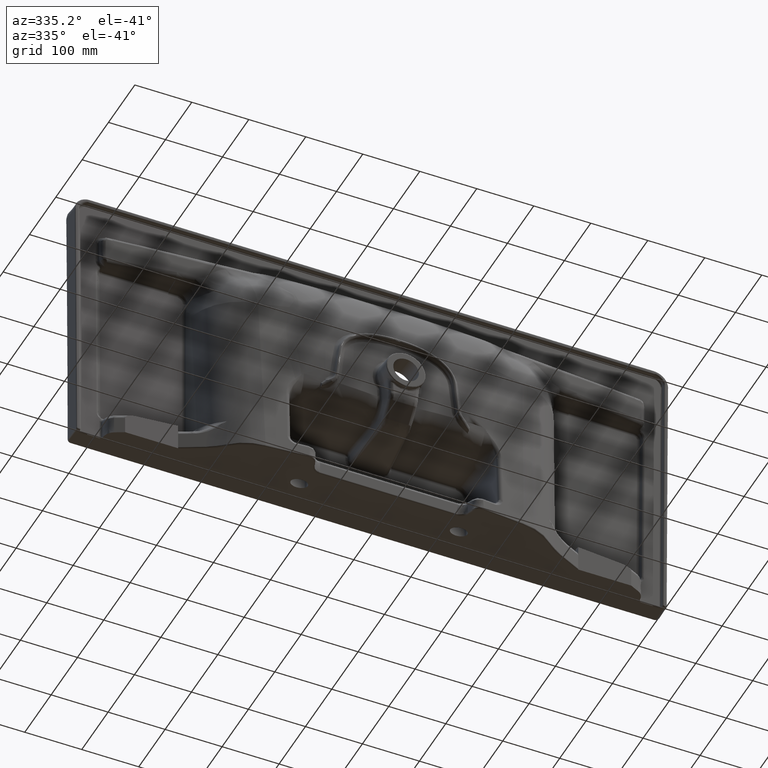
[diagram: clean part render]
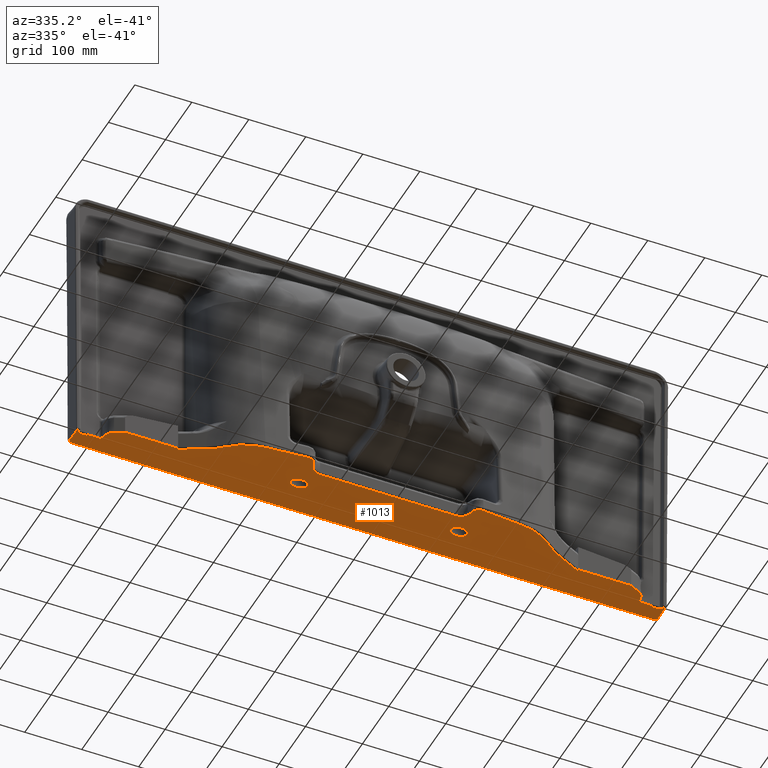
[diagram: same view with one face highlighted and labeled with its STEP entity id]
A machine part, auxiliary view. The second image highlights one B-rep face of the part: STEP entity #1013.
In plain terms, the highlighted planar face has unit normal (0, 0, -1).
Its self-contained STEP definition (entity closure, byte-faithful):
#603=PLANE('',#8682);
#640=ELLIPSE('',#8678,97.6579249239257,97.5);
#641=ELLIPSE('',#8679,97.6579249239257,97.5);
#642=ELLIPSE('',#8680,15.,10.);
#643=ELLIPSE('',#8681,15.,10.);
#693=FACE_BOUND('',#2185,.T.);
#694=FACE_BOUND('',#2186,.T.);
#695=FACE_BOUND('',#2187,.T.);
#1013=ADVANCED_FACE('',(#693,#694,#695),#603,.T.);
#2185=EDGE_LOOP('',(#3732,#3733,#3734,#3735,#3736,#3737,#3738,#3739,#3740,
#3741,#3742,#3743,#3744,#3745,#3746,#3747,#3748,#3749,#3750,#3751,#3752,
#3753,#3754,#3755,#3756,#3757,#3758,#3759,#3760,#3761,#3762,#3763,#3764,
#3765,#3766,#3767,#3768,#3769,#3770,#3771,#3772,#3773,#3774,#3775,#3776,
#3777,#3778));
#2186=EDGE_LOOP('',(#3779));
#2187=EDGE_LOOP('',(#3780));
#2766=B_SPLINE_CURVE_WITH_KNOTS('',3,(#10427,#10428,#10429,#10430),
 .UNSPECIFIED.,.F.,.F.,(4,4),(0.,1.),.UNSPECIFIED.);
#2767=B_SPLINE_CURVE_WITH_KNOTS('',3,(#10437,#10438,#10439,#10440),
 .UNSPECIFIED.,.F.,.F.,(4,4),(0.,1.),.UNSPECIFIED.);
#2768=B_SPLINE_CURVE_WITH_KNOTS('',3,(#10442,#10443,#10444,#10445,#10446,
#10447),.UNSPECIFIED.,.F.,.F.,(4,2,4),(0.,0.5,1.),.UNSPECIFIED.);
#2769=B_SPLINE_CURVE_WITH_KNOTS('',3,(#10449,#10450,#10451,#10452),
 .UNSPECIFIED.,.F.,.F.,(4,4),(0.,1.),.UNSPECIFIED.);
#2770=B_SPLINE_CURVE_WITH_KNOTS('',3,(#10454,#10455,#10456,#10457,#10458,
#10459,#10460,#10461,#10462,#10463,#10464,#10465,#10466),.UNSPECIFIED.,
 .F.,.F.,(4,3,3,3,4),(0.,0.254102590804526,0.508205181617672,0.762307772293524,
1.),.UNSPECIFIED.);
#2771=B_SPLINE_CURVE_WITH_KNOTS('',3,(#10468,#10469,#10470,#10471),
 .UNSPECIFIED.,.F.,.F.,(4,4),(0.,1.),.UNSPECIFIED.);
#2772=B_SPLINE_CURVE_WITH_KNOTS('',3,(#10475,#10476,#10477,#10478,#10479,
#10480,#10481),.UNSPECIFIED.,.F.,.F.,(4,3,4),(0.,0.369996112223852,1.),
 .UNSPECIFIED.);
#2773=B_SPLINE_CURVE_WITH_KNOTS('',3,(#10483,#10484,#10485,#10486,#10487,
#10488),.UNSPECIFIED.,.F.,.F.,(4,2,4),(0.,0.5,1.),.UNSPECIFIED.);
#2774=B_SPLINE_CURVE_WITH_KNOTS('',3,(#10490,#10491,#10492,#10493,#10494,
#10495,#10496,#10497,#10498,#10499,#10500,#10501,#10502,#10503,#10504,#10505),
 .UNSPECIFIED.,.F.,.F.,(4,3,3,3,3,4),(0.,0.214936908103801,0.429873731464657,
0.644811897918833,0.859752903923663,1.),.UNSPECIFIED.);
#2775=B_SPLINE_CURVE_WITH_KNOTS('',3,(#10507,#10508,#10509,#10510),
 .UNSPECIFIED.,.F.,.F.,(4,4),(0.,1.),.UNSPECIFIED.);
#2776=B_SPLINE_CURVE_WITH_KNOTS('',3,(#10512,#10513,#10514,#10515,#10516,
#10517,#10518,#10519,#10520,#10521),.UNSPECIFIED.,.F.,.F.,(4,3,3,4),(0.,
0.179128549203091,0.895642746015453,1.),.UNSPECIFIED.);
#2777=B_SPLINE_CURVE_WITH_KNOTS('',3,(#10523,#10524,#10525,#10526,#10527,
#10528,#10529,#10530,#10531,#10532,#10533,#10534,#10535,#10536,#10537,#10538),
 .UNSPECIFIED.,.F.,.F.,(4,3,3,3,3,4),(0.,0.15253395676081,0.364397745552172,
0.576264326293912,0.788132203927421,1.),.UNSPECIFIED.);
#2778=B_SPLINE_CURVE_WITH_KNOTS('',3,(#10540,#10541,#10542,#10543,#10544,
#10545,#10546,#10547,#10548,#10549),.UNSPECIFIED.,.F.,.F.,(4,3,3,4),(0.,
0.150521020451771,0.752605102258853,1.),.UNSPECIFIED.);
#2779=B_SPLINE_CURVE_WITH_KNOTS('',3,(#10550,#10551,#10552,#10553,#10554,
#10555,#10556,#10557,#10558,#10559),.UNSPECIFIED.,.F.,.F.,(4,3,3,4),(0.,
0.150521020451771,0.752605102258853,1.),.UNSPECIFIED.);
#2780=B_SPLINE_CURVE_WITH_KNOTS('',3,(#10561,#10562,#10563,#10564,#10565,
#10566,#10567,#10568,#10569,#10570,#10571,#10572,#10573,#10574,#10575,#10576),
 .UNSPECIFIED.,.F.,.F.,(4,3,3,3,3,4),(0.,0.152533956760808,0.364397745552167,
0.576264326293905,0.788132203927417,1.),.UNSPECIFIED.);
#2781=B_SPLINE_CURVE_WITH_KNOTS('',3,(#10578,#10579,#10580,#10581,#10582,
#10583,#10584,#10585,#10586,#10587),.UNSPECIFIED.,.F.,.F.,(4,3,3,4),(0.,
0.179128549203091,0.895642746015453,1.),.UNSPECIFIED.);
#2782=B_SPLINE_CURVE_WITH_KNOTS('',3,(#10589,#10590,#10591,#10592),
 .UNSPECIFIED.,.F.,.F.,(4,4),(0.,1.),.UNSPECIFIED.);
#2783=B_SPLINE_CURVE_WITH_KNOTS('',3,(#10594,#10595,#10596,#10597,#10598,
#10599,#10600,#10601,#10602,#10603,#10604,#10605,#10606,#10607,#10608,#10609),
 .UNSPECIFIED.,.F.,.F.,(4,3,3,3,3,4),(0.,0.214936908103801,0.42987373146464,
0.64481189791881,0.859752903923634,1.),.UNSPECIFIED.);
#2784=B_SPLINE_CURVE_WITH_KNOTS('',3,(#10611,#10612,#10613,#10614,#10615,
#10616),.UNSPECIFIED.,.F.,.F.,(4,2,4),(0.,0.5,1.),.UNSPECIFIED.);
#2785=B_SPLINE_CURVE_WITH_KNOTS('',3,(#10618,#10619,#10620,#10621,#10622,
#10623,#10624),.UNSPECIFIED.,.F.,.F.,(4,3,4),(0.,0.369996112223852,1.),
 .UNSPECIFIED.);
#2786=B_SPLINE_CURVE_WITH_KNOTS('',3,(#10628,#10629,#10630,#10631),
 .UNSPECIFIED.,.F.,.F.,(4,4),(0.,1.),.UNSPECIFIED.);
#2787=B_SPLINE_CURVE_WITH_KNOTS('',3,(#10633,#10634,#10635,#10636,#10637,
#10638,#10639,#10640,#10641,#10642,#10643,#10644,#10645),.UNSPECIFIED.,
 .F.,.F.,(4,3,3,3,4),(0.,0.254102590804522,0.508205181617664,0.762307772293516,
1.),.UNSPECIFIED.);
#2788=B_SPLINE_CURVE_WITH_KNOTS('',3,(#10647,#10648,#10649,#10650),
 .UNSPECIFIED.,.F.,.F.,(4,4),(0.,1.),.UNSPECIFIED.);
#2789=B_SPLINE_CURVE_WITH_KNOTS('',3,(#10652,#10653,#10654,#10655,#10656,
#10657),.UNSPECIFIED.,.F.,.F.,(4,2,4),(0.,0.5,1.),.UNSPECIFIED.);
#2790=B_SPLINE_CURVE_WITH_KNOTS('',3,(#10659,#10660,#10661,#10662),
 .UNSPECIFIED.,.F.,.F.,(4,4),(0.,1.),.UNSPECIFIED.);
#2791=B_SPLINE_CURVE_WITH_KNOTS('',3,(#10668,#10669,#10670,#10671),
 .UNSPECIFIED.,.F.,.F.,(4,4),(0.,1.),.UNSPECIFIED.);
#2792=B_SPLINE_CURVE_WITH_KNOTS('',3,(#10673,#10674,#10675,#10676),
 .UNSPECIFIED.,.F.,.F.,(4,4),(0.,1.),.UNSPECIFIED.);
#2793=B_SPLINE_CURVE_WITH_KNOTS('',3,(#10682,#10683,#10684,#10685,#10686,
#10687),.UNSPECIFIED.,.F.,.F.,(4,2,4),(0.,0.5,1.),.UNSPECIFIED.);
#2794=B_SPLINE_CURVE_WITH_KNOTS('',3,(#10689,#10690,#10691,#10692,#10693,
#10694,#10695),.UNSPECIFIED.,.F.,.F.,(4,3,4),(0.,0.525358105713811,1.),
 .UNSPECIFIED.);
#2795=B_SPLINE_CURVE_WITH_KNOTS('',3,(#10697,#10698,#10699,#10700,#10701,
#10702),.UNSPECIFIED.,.F.,.F.,(4,2,4),(0.,0.5,1.),.UNSPECIFIED.);
#2796=B_SPLINE_CURVE_WITH_KNOTS('',3,(#10704,#10705,#10706,#10707,#10708,
#10709,#10710,#10711,#10712,#10713,#10714,#10715,#10716),.UNSPECIFIED.,
 .F.,.F.,(4,3,3,3,4),(0.,0.0416067440002956,0.208033720001478,0.873741624006209,
1.),.UNSPECIFIED.);
#2797=B_SPLINE_CURVE_WITH_KNOTS('',3,(#10718,#10719,#10720,#10721,#10722,
#10723,#10724,#10725,#10726,#10727,#10728,#10729,#10730),.UNSPECIFIED.,
 .F.,.F.,(4,3,3,3,4),(0.,0.0416067440002948,0.208033720001478,0.873741624006208,
1.),.UNSPECIFIED.);
#2798=B_SPLINE_CURVE_WITH_KNOTS('',3,(#10732,#10733,#10734,#10735,#10736,
#10737),.UNSPECIFIED.,.F.,.F.,(4,2,4),(0.,0.5,1.),.UNSPECIFIED.);
#2799=B_SPLINE_CURVE_WITH_KNOTS('',3,(#10739,#10740,#10741,#10742,#10743,
#10744,#10745),.UNSPECIFIED.,.F.,.F.,(4,3,4),(0.,0.525358105713811,1.),
 .UNSPECIFIED.);
#2800=B_SPLINE_CURVE_WITH_KNOTS('',3,(#10747,#10748,#10749,#10750,#10751,
#10752),.UNSPECIFIED.,.F.,.F.,(4,2,4),(0.,0.5,1.),.UNSPECIFIED.);
#2801=B_SPLINE_CURVE_WITH_KNOTS('',3,(#10758,#10759,#10760,#10761),
 .UNSPECIFIED.,.F.,.F.,(4,4),(0.,1.),.UNSPECIFIED.);
#3732=ORIENTED_EDGE('',*,*,#7178,.T.);
#3733=ORIENTED_EDGE('',*,*,#7179,.F.);
#3734=ORIENTED_EDGE('',*,*,#7180,.F.);
#3735=ORIENTED_EDGE('',*,*,#7181,.F.);
#3736=ORIENTED_EDGE('',*,*,#7182,.T.);
#3737=ORIENTED_EDGE('',*,*,#7183,.T.);
#3738=ORIENTED_EDGE('',*,*,#7184,.T.);
#3739=ORIENTED_EDGE('',*,*,#7185,.F.);
#3740=ORIENTED_EDGE('',*,*,#7186,.T.);
#3741=ORIENTED_EDGE('',*,*,#7187,.T.);
#3742=ORIENTED_EDGE('',*,*,#7188,.T.);
#3743=ORIENTED_EDGE('',*,*,#7189,.T.);
#3744=ORIENTED_EDGE('',*,*,#7190,.T.);
#3745=ORIENTED_EDGE('',*,*,#7191,.T.);
#3746=ORIENTED_EDGE('',*,*,#7192,.T.);
#3747=ORIENTED_EDGE('',*,*,#7193,.T.);
#3748=ORIENTED_EDGE('',*,*,#7163,.T.);
#3749=ORIENTED_EDGE('',*,*,#7194,.F.);
#3750=ORIENTED_EDGE('',*,*,#7195,.F.);
#3751=ORIENTED_EDGE('',*,*,#7196,.F.);
#3752=ORIENTED_EDGE('',*,*,#7197,.F.);
#3753=ORIENTED_EDGE('',*,*,#7198,.F.);
#3754=ORIENTED_EDGE('',*,*,#7199,.F.);
#3755=ORIENTED_EDGE('',*,*,#7200,.F.);
#3756=ORIENTED_EDGE('',*,*,#7201,.F.);
#3757=ORIENTED_EDGE('',*,*,#7202,.T.);
#3758=ORIENTED_EDGE('',*,*,#7203,.F.);
#3759=ORIENTED_EDGE('',*,*,#7204,.F.);
#3760=ORIENTED_EDGE('',*,*,#7205,.F.);
#3761=ORIENTED_EDGE('',*,*,#7206,.T.);
#3762=ORIENTED_EDGE('',*,*,#7207,.T.);
#3763=ORIENTED_EDGE('',*,*,#7208,.T.);
#3764=ORIENTED_EDGE('',*,*,#7209,.F.);
#3765=ORIENTED_EDGE('',*,*,#7210,.F.);
#3766=ORIENTED_EDGE('',*,*,#7211,.F.);
#3767=ORIENTED_EDGE('',*,*,#7212,.F.);
#3768=ORIENTED_EDGE('',*,*,#7213,.F.);
#3769=ORIENTED_EDGE('',*,*,#7214,.F.);
#3770=ORIENTED_EDGE('',*,*,#7215,.F.);
#3771=ORIENTED_EDGE('',*,*,#7216,.F.);
#3772=ORIENTED_EDGE('',*,*,#7217,.T.);
#3773=ORIENTED_EDGE('',*,*,#7218,.T.);
#3774=ORIENTED_EDGE('',*,*,#7219,.T.);
#3775=ORIENTED_EDGE('',*,*,#7220,.T.);
#3776=ORIENTED_EDGE('',*,*,#7221,.T.);
#3777=ORIENTED_EDGE('',*,*,#7222,.T.);
#3778=ORIENTED_EDGE('',*,*,#7223,.T.);
#3779=ORIENTED_EDGE('',*,*,#7224,.T.);
#3780=ORIENTED_EDGE('',*,*,#7225,.F.);
#6383=VERTEX_POINT('',#9970);
#6384=VERTEX_POINT('',#9972);
#6398=VERTEX_POINT('',#10431);
#6399=VERTEX_POINT('',#10432);
#6400=VERTEX_POINT('',#10434);
#6401=VERTEX_POINT('',#10436);
#6402=VERTEX_POINT('',#10441);
#6403=VERTEX_POINT('',#10448);
#6404=VERTEX_POINT('',#10453);
#6405=VERTEX_POINT('',#10467);
#6406=VERTEX_POINT('',#10472);
#6407=VERTEX_POINT('',#10474);
#6408=VERTEX_POINT('',#10482);
#6409=VERTEX_POINT('',#10489);
#6410=VERTEX_POINT('',#10506);
#6411=VERTEX_POINT('',#10511);
#6412=VERTEX_POINT('',#10522);
#6413=VERTEX_POINT('',#10539);
#6414=VERTEX_POINT('',#10560);
#6415=VERTEX_POINT('',#10577);
#6416=VERTEX_POINT('',#10588);
#6417=VERTEX_POINT('',#10593);
#6418=VERTEX_POINT('',#10610);
#6419=VERTEX_POINT('',#10617);
#6420=VERTEX_POINT('',#10625);
#6421=VERTEX_POINT('',#10627);
#6422=VERTEX_POINT('',#10632);
#6423=VERTEX_POINT('',#10646);
#6424=VERTEX_POINT('',#10651);
#6425=VERTEX_POINT('',#10658);
#6426=VERTEX_POINT('',#10663);
#6427=VERTEX_POINT('',#10665);
#6428=VERTEX_POINT('',#10667);
#6429=VERTEX_POINT('',#10672);
#6430=VERTEX_POINT('',#10677);
#6431=VERTEX_POINT('',#10679);
#6432=VERTEX_POINT('',#10681);
#6433=VERTEX_POINT('',#10688);
#6434=VERTEX_POINT('',#10696);
#6435=VERTEX_POINT('',#10703);
#6436=VERTEX_POINT('',#10717);
#6437=VERTEX_POINT('',#10731);
#6438=VERTEX_POINT('',#10738);
#6439=VERTEX_POINT('',#10746);
#6440=VERTEX_POINT('',#10753);
#6441=VERTEX_POINT('',#10755);
#6442=VERTEX_POINT('',#10757);
#6443=VERTEX_POINT('',#10763);
#6444=VERTEX_POINT('',#10765);
#7163=EDGE_CURVE('',#6384,#6383,#8498,.T.);
#7178=EDGE_CURVE('',#6398,#6399,#2766,.T.);
#7179=EDGE_CURVE('',#6400,#6399,#8500,.T.);
#7180=EDGE_CURVE('',#6401,#6400,#8501,.T.);
#7181=EDGE_CURVE('',#6402,#6401,#2767,.T.);
#7182=EDGE_CURVE('',#6402,#6403,#2768,.T.);
#7183=EDGE_CURVE('',#6403,#6404,#2769,.T.);
#7184=EDGE_CURVE('',#6404,#6405,#2770,.T.);
#7185=EDGE_CURVE('',#6406,#6405,#2771,.T.);
#7186=EDGE_CURVE('',#6406,#6407,#8502,.T.);
#7187=EDGE_CURVE('',#6407,#6408,#2772,.T.);
#7188=EDGE_CURVE('',#6408,#6409,#2773,.T.);
#7189=EDGE_CURVE('',#6409,#6410,#2774,.T.);
#7190=EDGE_CURVE('',#6410,#6411,#2775,.T.);
#7191=EDGE_CURVE('',#6411,#6412,#2776,.T.);
#7192=EDGE_CURVE('',#6412,#6413,#2777,.T.);
#7193=EDGE_CURVE('',#6413,#6384,#2778,.T.);
#7194=EDGE_CURVE('',#6414,#6383,#2779,.T.);
#7195=EDGE_CURVE('',#6415,#6414,#2780,.T.);
#7196=EDGE_CURVE('',#6416,#6415,#2781,.T.);
#7197=EDGE_CURVE('',#6417,#6416,#2782,.T.);
#7198=EDGE_CURVE('',#6418,#6417,#2783,.T.);
#7199=EDGE_CURVE('',#6419,#6418,#2784,.T.);
#7200=EDGE_CURVE('',#6420,#6419,#2785,.T.);
#7201=EDGE_CURVE('',#6421,#6420,#8503,.T.);
#7202=EDGE_CURVE('',#6421,#6422,#2786,.T.);
#7203=EDGE_CURVE('',#6423,#6422,#2787,.T.);
#7204=EDGE_CURVE('',#6424,#6423,#2788,.T.);
#7205=EDGE_CURVE('',#6425,#6424,#2789,.T.);
#7206=EDGE_CURVE('',#6425,#6426,#2790,.T.);
#7207=EDGE_CURVE('',#6426,#6427,#8504,.T.);
#7208=EDGE_CURVE('',#6427,#6428,#8505,.T.);
#7209=EDGE_CURVE('',#6429,#6428,#2791,.T.);
#7210=EDGE_CURVE('',#6430,#6429,#2792,.T.);
#7211=EDGE_CURVE('',#6431,#6430,#640,.T.);
#7212=EDGE_CURVE('',#6432,#6431,#8506,.T.);
#7213=EDGE_CURVE('',#6433,#6432,#2793,.T.);
#7214=EDGE_CURVE('',#6434,#6433,#2794,.T.);
#7215=EDGE_CURVE('',#6435,#6434,#2795,.T.);
#7216=EDGE_CURVE('',#6436,#6435,#2796,.T.);
#7217=EDGE_CURVE('',#6436,#6437,#2797,.T.);
#7218=EDGE_CURVE('',#6437,#6438,#2798,.T.);
#7219=EDGE_CURVE('',#6438,#6439,#2799,.T.);
#7220=EDGE_CURVE('',#6439,#6440,#2800,.T.);
#7221=EDGE_CURVE('',#6440,#6441,#8507,.T.);
#7222=EDGE_CURVE('',#6441,#6442,#641,.T.);
#7223=EDGE_CURVE('',#6442,#6398,#2801,.T.);
#7224=EDGE_CURVE('',#6443,#6443,#642,.T.);
#7225=EDGE_CURVE('',#6444,#6444,#643,.T.);
#8498=LINE('',#9971,#8574);
#8500=LINE('',#10433,#8576);
#8501=LINE('',#10435,#8577);
#8502=LINE('',#10473,#8578);
#8503=LINE('',#10626,#8579);
#8504=LINE('',#10664,#8580);
#8505=LINE('',#10666,#8581);
#8506=LINE('',#10680,#8582);
#8507=LINE('',#10754,#8583);
#8574=VECTOR('',#9068,1.);
#8576=VECTOR('',#9108,1.);
#8577=VECTOR('',#9109,1.);
#8578=VECTOR('',#9110,1.);
#8579=VECTOR('',#9111,1.);
#8580=VECTOR('',#9112,1.);
#8581=VECTOR('',#9113,1.);
#8582=VECTOR('',#9116,1.);
#8583=VECTOR('',#9117,1.);
#8678=AXIS2_PLACEMENT_3D('',#10678,#9114,#9115);
#8679=AXIS2_PLACEMENT_3D('',#10756,#9118,#9119);
#8680=AXIS2_PLACEMENT_3D('',#10762,#9120,#9121);
#8681=AXIS2_PLACEMENT_3D('',#10764,#9122,#9123);
#8682=AXIS2_PLACEMENT_3D('',#10766,#9124,#9125);
#9068=DIRECTION('',(1.,0.,0.));
#9108=DIRECTION('',(0.,1.,0.));
#9109=DIRECTION('',(1.,0.,0.));
#9110=DIRECTION('',(0.,1.,0.));
#9111=DIRECTION('',(0.,1.,0.));
#9112=DIRECTION('',(-1.,0.,0.));
#9113=DIRECTION('',(0.,1.,0.));
#9114=DIRECTION('',(0.,0.,1.));
#9115=DIRECTION('',(0.309016994374947,0.951056516295154,0.));
#9116=DIRECTION('',(0.996173806224038,0.0873942091509145,0.));
#9117=DIRECTION('',(-0.996173806224038,0.0873942091509145,0.));
#9118=DIRECTION('',(0.,0.,-1.));
#9119=DIRECTION('',(-0.309016994374947,0.951056516295154,0.));
#9120=DIRECTION('',(0.,0.,1.));
#9121=DIRECTION('',(1.,0.,0.));
#9122=DIRECTION('',(0.,0.,-1.));
#9123=DIRECTION('',(-1.,0.,0.));
#9124=DIRECTION('',(0.,0.,-1.));
#9125=DIRECTION('',(-1.,0.,0.));
#9970=CARTESIAN_POINT('',(474.584749255457,-19.6258675358207,-238.365596089054));
#9971=CARTESIAN_POINT('',(-4.00000000000006,-19.6258675358207,-238.365596089054));
#9972=CARTESIAN_POINT('',(-482.584749255457,-19.6258675358207,-238.365596089054));
#10427=CARTESIAN_POINT('',(-314.36730217819,-96.1587670242462,-238.365596089054));
#10428=CARTESIAN_POINT('',(-327.911669283537,-89.4959009917304,-238.365596089054));
#10429=CARTESIAN_POINT('',(-341.455949242889,-82.8328577899802,-238.365596089054));
#10430=CARTESIAN_POINT('',(-355.,-76.1693487188919,-238.365596089054));
#10431=CARTESIAN_POINT('',(-314.36730217819,-96.1587670242462,-238.365596089054));
#10432=CARTESIAN_POINT('',(-355.,-76.1693487188919,-238.365596089054));
#10433=CARTESIAN_POINT('',(-355.,0.,-238.365596089054));
#10434=CARTESIAN_POINT('',(-355.,-78.9563557947205,-238.365596089054));
#10435=CARTESIAN_POINT('',(-499.,-78.9563557947205,-238.365596089054));
#10436=CARTESIAN_POINT('',(-448.000000171255,-78.9563557947205,-238.365596089054));
#10437=CARTESIAN_POINT('',(-463.717087411793,-71.2235401172891,-238.365596089054));
#10438=CARTESIAN_POINT('',(-458.478097435319,-73.8012248205637,-238.365596089054));
#10439=CARTESIAN_POINT('',(-453.239065412191,-76.3788240676013,-238.365596089054));
#10440=CARTESIAN_POINT('',(-448.000000171255,-78.9563557947205,-238.365596089054));
#10441=CARTESIAN_POINT('',(-463.717087411793,-71.2235401172891,-238.365596089054));
#10442=CARTESIAN_POINT('',(-463.717087411793,-71.2235401172891,-238.365596089054));
#10443=CARTESIAN_POINT('',(-466.549609005418,-69.8298845431481,-238.365596089054));
#10444=CARTESIAN_POINT('',(-469.00657899035,-67.7815720973043,-238.365596089054));
#10445=CARTESIAN_POINT('',(-472.747825182096,-62.8022088052743,-238.365596089054));
#10446=CARTESIAN_POINT('',(-474.03555286044,-59.8598908110384,-238.365596089054));
#10447=CARTESIAN_POINT('',(-474.583727302669,-56.751039062858,-238.365596089054));
#10448=CARTESIAN_POINT('',(-474.583727302669,-56.7510390628579,-238.365596089054));
#10449=CARTESIAN_POINT('',(-474.583727302669,-56.7510390628579,-238.365596089054));
#10450=CARTESIAN_POINT('',(-474.866559153093,-55.1470199315447,-238.365596089054));
#10451=CARTESIAN_POINT('',(-475.149391003518,-53.5430008002313,-238.365596089054));
#10452=CARTESIAN_POINT('',(-475.432222853942,-51.938981668918,-238.365596089054));
#10453=CARTESIAN_POINT('',(-475.432222853942,-51.938981668918,-238.365596089054));
#10454=CARTESIAN_POINT('',(-475.432222853941,-51.9389816689179,-238.365596089054));
#10455=CARTESIAN_POINT('',(-475.509964303248,-51.4980880008349,-238.365596089054));
#10456=CARTESIAN_POINT('',(-475.664898793694,-51.0645363121512,-238.365596089054));
#10457=CARTESIAN_POINT('',(-475.884196132792,-50.6742292067066,-238.365596089054));
#10458=CARTESIAN_POINT('',(-476.103493471894,-50.2839221012547,-238.365596089054));
#10459=CARTESIAN_POINT('',(-476.393202151038,-49.9260944271645,-238.365596089054));
#10460=CARTESIAN_POINT('',(-476.729331268572,-49.630378049787,-238.365596089054));
#10461=CARTESIAN_POINT('',(-477.065460385923,-49.3346616725714,-238.365596089054));
#10462=CARTESIAN_POINT('',(-477.457280797703,-49.0929003691939,-238.365596089054));
#10463=CARTESIAN_POINT('',(-477.872345685225,-48.9251144984228,-238.365596089054));
#10464=CARTESIAN_POINT('',(-478.261290729117,-48.7678873157979,-238.365596089054));
#10465=CARTESIAN_POINT('',(-478.680309581395,-48.6714640521749,-238.365596089054));
#10466=CARTESIAN_POINT('',(-479.098856156862,-48.6428738739786,-238.365596089054));
#10467=CARTESIAN_POINT('',(-479.098220915429,-48.6335742423167,-238.365596089054));
#10468=CARTESIAN_POINT('',(-500.,-48.6335843830684,-238.365596089054));
#10469=CARTESIAN_POINT('',(-493.032740305143,-48.6335810031592,-238.365596089054));
#10470=CARTESIAN_POINT('',(-486.065480610286,-48.6335776229085,-238.365596089054));
#10471=CARTESIAN_POINT('',(-479.098220915429,-48.6335742423167,-238.365596089054));
#10472=CARTESIAN_POINT('',(-500.,-48.6335843830684,-238.365596089054));
#10473=CARTESIAN_POINT('',(-500.,-284.503441547336,-238.365596089054));
#10474=CARTESIAN_POINT('',(-500.,-46.1337049561332,-238.365596089054));
#10475=CARTESIAN_POINT('',(-500.,-46.1337049561332,-238.365596089054));
#10476=CARTESIAN_POINT('',(-501.370433370491,-46.1337056180254,-238.365596089054));
#10477=CARTESIAN_POINT('',(-502.740866740983,-46.1337062799043,-238.365596089054));
#10478=CARTESIAN_POINT('',(-504.111300111474,-46.1337069417698,-238.365596089054));
#10479=CARTESIAN_POINT('',(-506.44477963416,-46.1337080687487,-238.365596089054));
#10480=CARTESIAN_POINT('',(-508.778259156846,-46.1337091956887,-238.365596089054));
#10481=CARTESIAN_POINT('',(-511.111738679532,-46.1337103225899,-238.365596089054));
#10482=CARTESIAN_POINT('',(-511.111738679532,-46.1337103225899,-238.365596089054));
#10483=CARTESIAN_POINT('',(-511.111738679532,-46.1337103225899,-238.365596089054));
#10484=CARTESIAN_POINT('',(-512.564345134865,-46.1337110240933,-238.365596089054));
#10485=CARTESIAN_POINT('',(-513.988311394956,-46.7313528203336,-238.365596089054));
#10486=CARTESIAN_POINT('',(-516.016199887885,-48.7606515735757,-238.365596089054));
#10487=CARTESIAN_POINT('',(-516.611813020361,-50.1811060354095,-238.365596089054));
#10488=CARTESIAN_POINT('',(-516.611812665908,-51.6337130525274,-238.365596089054));
#10489=CARTESIAN_POINT('',(-516.611812665906,-51.6337209912485,-238.365596089054));
#10490=CARTESIAN_POINT('',(-516.611812665904,-51.6337289299696,-238.365596089054));
#10491=CARTESIAN_POINT('',(-516.611812652249,-51.6896902655289,-238.365596089054));
#10492=CARTESIAN_POINT('',(-516.621474488077,-51.7464233440962,-238.365596089054));
#10493=CARTESIAN_POINT('',(-516.639998026749,-51.799230063296,-238.365596089054));
#10494=CARTESIAN_POINT('',(-516.658521561346,-51.8520367708777,-238.365596089054));
#10495=CARTESIAN_POINT('',(-516.686417683155,-51.9023735863026,-238.365596089054));
#10496=CARTESIAN_POINT('',(-516.721376239417,-51.9460722023406,-238.365596089054));
#10497=CARTESIAN_POINT('',(-516.756335016714,-51.9897710946743,-238.365596089054));
#10498=CARTESIAN_POINT('',(-516.799320497948,-52.0280369593923,-238.365596089054));
#10499=CARTESIAN_POINT('',(-516.846773048646,-52.0577011589196,-238.365596089054));
#10500=CARTESIAN_POINT('',(-516.894226219363,-52.0873657460428,-238.365596089054));
#10501=CARTESIAN_POINT('',(-516.947455368155,-52.1092466214253,-238.365596089054));
#10502=CARTESIAN_POINT('',(-517.00205263928,-52.1215319429952,-238.365596089054));
#10503=CARTESIAN_POINT('',(-517.037968716664,-52.1296136758568,-238.365596089054));
#10504=CARTESIAN_POINT('',(-517.075005271376,-52.1337291599092,-238.365596089054));
#10505=CARTESIAN_POINT('',(-517.111819385799,-52.1337291781388,-238.365596089054));
#10506=CARTESIAN_POINT('',(-517.111819385799,-52.1337291781388,-238.365596089054));
#10507=CARTESIAN_POINT('',(-517.111819385799,-52.1337291781388,-238.365596089054));
#10508=CARTESIAN_POINT('',(-517.963890405733,-52.1337296000657,-238.365596089054));
#10509=CARTESIAN_POINT('',(-518.815961425666,-52.1337300219877,-238.365596089054));
#10510=CARTESIAN_POINT('',(-519.668032445599,-52.1337304439048,-238.365596089054));
#10511=CARTESIAN_POINT('',(-519.668032445599,-52.1337304439048,-238.365596089054));
#10512=CARTESIAN_POINT('',(-519.668032445599,-52.1337304439048,-238.365596089054));
#10513=CARTESIAN_POINT('',(-519.705862661811,-50.4674931701292,-238.365596089054));
#10514=CARTESIAN_POINT('',(-519.743692877904,-48.8012558963509,-238.365596089054));
#10515=CARTESIAN_POINT('',(-519.781523093875,-47.1350186225698,-238.365596089054));
#10516=CARTESIAN_POINT('',(-519.93284395776,-40.4700695274456,-238.365596089054));
#10517=CARTESIAN_POINT('',(-520.084164819697,-33.8051204322771,-238.365596089054));
#10518=CARTESIAN_POINT('',(-520.235485679505,-27.1401713370603,-238.365596089054));
#10519=CARTESIAN_POINT('',(-520.257524920975,-26.1694497678047,-238.365596089054));
#10520=CARTESIAN_POINT('',(-520.2795641624,-25.198728198548,-238.365596089054));
#10521=CARTESIAN_POINT('',(-520.301603403779,-24.2280066292904,-238.365596089054));
#10522=CARTESIAN_POINT('',(-520.301603403779,-24.2280066292904,-238.365596089054));
#10523=CARTESIAN_POINT('',(-520.301603403779,-24.2280066292904,-238.365596089054));
#10524=CARTESIAN_POINT('',(-520.309890551724,-23.8629980013032,-238.365596089054));
#10525=CARTESIAN_POINT('',(-520.273155464136,-23.4942929078226,-238.365596089054));
#10526=CARTESIAN_POINT('',(-520.193012619949,-23.1380947890014,-238.365596089054));
#10527=CARTESIAN_POINT('',(-520.082455486974,-22.6467191311047,-238.365596089054));
#10528=CARTESIAN_POINT('',(-519.885535448337,-22.1676551923432,-238.365596089054));
#10529=CARTESIAN_POINT('',(-519.618560662105,-21.7405751291919,-238.365596089054));
#10530=CARTESIAN_POINT('',(-519.351582395422,-21.3134894983575,-238.365596089054));
#10531=CARTESIAN_POINT('',(-519.00718379886,-20.9266091663542,-238.365596089054));
#10532=CARTESIAN_POINT('',(-518.61388625006,-20.6119719640817,-238.365596089054));
#10533=CARTESIAN_POINT('',(-518.220586263456,-20.2973328115716,-238.365596089054));
#10534=CARTESIAN_POINT('',(-517.767538828961,-20.0462592594072,-238.365596089054));
#10535=CARTESIAN_POINT('',(-517.292261945221,-19.879542255064,-238.365596089054));
#10536=CARTESIAN_POINT('',(-516.816985163318,-19.712825286443,-238.365596089054));
#10537=CARTESIAN_POINT('',(-516.306370145197,-19.6258664492377,-238.365596089054));
#10538=CARTESIAN_POINT('',(-515.802701040484,-19.6258664492377,-238.365596089054));
#10539=CARTESIAN_POINT('',(-515.802701040484,-19.6258664492377,-238.365596089054));
#10540=CARTESIAN_POINT('',(-515.802701040484,-19.6258664492377,-238.365596089054));
#10541=CARTESIAN_POINT('',(-514.136034373818,-19.6258664492377,-238.365596089054));
#10542=CARTESIAN_POINT('',(-512.469367707151,-19.6258664492377,-238.365596089054));
#10543=CARTESIAN_POINT('',(-510.802701040484,-19.6258664492378,-238.365596089054));
#10544=CARTESIAN_POINT('',(-504.136034373818,-19.6258664492378,-238.365596089054));
#10545=CARTESIAN_POINT('',(-497.469367707151,-19.6258664492379,-238.365596089054));
#10546=CARTESIAN_POINT('',(-490.802701040484,-19.6258664492379,-238.365596089054));
#10547=CARTESIAN_POINT('',(-488.063383778809,-19.625866449238,-238.365596089054));
#10548=CARTESIAN_POINT('',(-485.324066517133,-19.625866449238,-238.365596089054));
#10549=CARTESIAN_POINT('',(-482.584749255457,-19.625866449238,-238.365596089054));
#10550=CARTESIAN_POINT('',(507.802701040484,-19.6258664492377,-238.365596089054));
#10551=CARTESIAN_POINT('',(506.136034373818,-19.6258664492377,-238.365596089054));
#10552=CARTESIAN_POINT('',(504.469367707151,-19.6258664492377,-238.365596089054));
#10553=CARTESIAN_POINT('',(502.802701040484,-19.6258664492378,-238.365596089054));
#10554=CARTESIAN_POINT('',(496.136034373818,-19.6258664492378,-238.365596089054));
#10555=CARTESIAN_POINT('',(489.469367707151,-19.6258664492379,-238.365596089054));
#10556=CARTESIAN_POINT('',(482.802701040484,-19.6258664492379,-238.365596089054));
#10557=CARTESIAN_POINT('',(480.063383778809,-19.625866449238,-238.365596089054));
#10558=CARTESIAN_POINT('',(477.324066517133,-19.625866449238,-238.365596089054));
#10559=CARTESIAN_POINT('',(474.584749255457,-19.625866449238,-238.365596089054));
#10560=CARTESIAN_POINT('',(507.802701040484,-19.6258664492377,-238.365596089054));
#10561=CARTESIAN_POINT('',(512.301603403779,-24.2280066292904,-238.365596089054));
#10562=CARTESIAN_POINT('',(512.309890551724,-23.8629980013032,-238.365596089054));
#10563=CARTESIAN_POINT('',(512.273155464136,-23.4942929078226,-238.365596089054));
#10564=CARTESIAN_POINT('',(512.193012619949,-23.1380947890014,-238.365596089054));
#10565=CARTESIAN_POINT('',(512.082455486974,-22.6467191311047,-238.365596089054));
#10566=CARTESIAN_POINT('',(511.885535448337,-22.1676551923432,-238.365596089054));
#10567=CARTESIAN_POINT('',(511.618560662105,-21.7405751291919,-238.365596089054));
#10568=CARTESIAN_POINT('',(511.351582395422,-21.3134894983575,-238.365596089054));
#10569=CARTESIAN_POINT('',(511.00718379886,-20.9266091663542,-238.365596089054));
#10570=CARTESIAN_POINT('',(510.61388625006,-20.6119719640817,-238.365596089054));
#10571=CARTESIAN_POINT('',(510.220586263456,-20.2973328115716,-238.365596089054));
#10572=CARTESIAN_POINT('',(509.767538828961,-20.0462592594072,-238.365596089054));
#10573=CARTESIAN_POINT('',(509.292261945221,-19.879542255064,-238.365596089054));
#10574=CARTESIAN_POINT('',(508.816985163318,-19.712825286443,-238.365596089054));
#10575=CARTESIAN_POINT('',(508.306370145197,-19.6258664492377,-238.365596089054));
#10576=CARTESIAN_POINT('',(507.802701040484,-19.6258664492377,-238.365596089054));
#10577=CARTESIAN_POINT('',(512.301603403779,-24.2280066292904,-238.365596089054));
#10578=CARTESIAN_POINT('',(511.668032445599,-52.1337304439048,-238.365596089054));
#10579=CARTESIAN_POINT('',(511.705862661811,-50.4674931701292,-238.365596089054));
#10580=CARTESIAN_POINT('',(511.743692877904,-48.8012558963509,-238.365596089054));
#10581=CARTESIAN_POINT('',(511.781523093875,-47.1350186225698,-238.365596089054));
#10582=CARTESIAN_POINT('',(511.93284395776,-40.4700695274456,-238.365596089054));
#10583=CARTESIAN_POINT('',(512.084164819697,-33.8051204322771,-238.365596089054));
#10584=CARTESIAN_POINT('',(512.235485679505,-27.1401713370603,-238.365596089054));
#10585=CARTESIAN_POINT('',(512.257524920975,-26.1694497678047,-238.365596089054));
#10586=CARTESIAN_POINT('',(512.2795641624,-25.198728198548,-238.365596089054));
#10587=CARTESIAN_POINT('',(512.301603403779,-24.2280066292904,-238.365596089054));
#10588=CARTESIAN_POINT('',(511.668032445599,-52.1337304439048,-238.365596089054));
#10589=CARTESIAN_POINT('',(509.111819385799,-52.1337291781388,-238.365596089054));
#10590=CARTESIAN_POINT('',(509.963890405733,-52.1337296000657,-238.365596089054));
#10591=CARTESIAN_POINT('',(510.815961425666,-52.1337300219877,-238.365596089054));
#10592=CARTESIAN_POINT('',(511.668032445599,-52.1337304439048,-238.365596089054));
#10593=CARTESIAN_POINT('',(509.111819385799,-52.1337291781388,-238.365596089054));
#10594=CARTESIAN_POINT('',(508.611812665904,-51.6337289299696,-238.365596089054));
#10595=CARTESIAN_POINT('',(508.611812652249,-51.6896902655289,-238.365596089054));
#10596=CARTESIAN_POINT('',(508.621474488077,-51.7464233440962,-238.365596089054));
#10597=CARTESIAN_POINT('',(508.639998026749,-51.799230063296,-238.365596089054));
#10598=CARTESIAN_POINT('',(508.658521561346,-51.8520367708776,-238.365596089054));
#10599=CARTESIAN_POINT('',(508.686417683155,-51.9023735863026,-238.365596089054));
#10600=CARTESIAN_POINT('',(508.721376239417,-51.9460722023406,-238.365596089054));
#10601=CARTESIAN_POINT('',(508.756335016714,-51.9897710946743,-238.365596089054));
#10602=CARTESIAN_POINT('',(508.799320497948,-52.0280369593922,-238.365596089054));
#10603=CARTESIAN_POINT('',(508.846773048646,-52.0577011589196,-238.365596089054));
#10604=CARTESIAN_POINT('',(508.894226219363,-52.0873657460428,-238.365596089054));
#10605=CARTESIAN_POINT('',(508.947455368155,-52.1092466214253,-238.365596089054));
#10606=CARTESIAN_POINT('',(509.00205263928,-52.1215319429952,-238.365596089054));
#10607=CARTESIAN_POINT('',(509.037968716664,-52.1296136758568,-238.365596089054));
#10608=CARTESIAN_POINT('',(509.075005271376,-52.1337291599092,-238.365596089054));
#10609=CARTESIAN_POINT('',(509.111819385799,-52.1337291781388,-238.365596089054));
#10610=CARTESIAN_POINT('',(508.611812665906,-51.6337209912485,-238.365596089054));
#10611=CARTESIAN_POINT('',(503.111738679532,-46.1337103225899,-238.365596089054));
#10612=CARTESIAN_POINT('',(504.564345134865,-46.1337110240933,-238.365596089054));
#10613=CARTESIAN_POINT('',(505.988311394957,-46.7313528203336,-238.365596089054));
#10614=CARTESIAN_POINT('',(508.016199887885,-48.7606515735756,-238.365596089054));
#10615=CARTESIAN_POINT('',(508.611813020361,-50.1811060354096,-238.365596089054));
#10616=CARTESIAN_POINT('',(508.611812665908,-51.6337130525274,-238.365596089054));
#10617=CARTESIAN_POINT('',(503.111738679532,-46.1337103225899,-238.365596089054));
#10618=CARTESIAN_POINT('',(492.,-46.1337049561332,-238.365596089054));
#10619=CARTESIAN_POINT('',(493.370433370491,-46.1337056180254,-238.365596089054));
#10620=CARTESIAN_POINT('',(494.740866740983,-46.1337062799043,-238.365596089054));
#10621=CARTESIAN_POINT('',(496.111300111474,-46.1337069417698,-238.365596089054));
#10622=CARTESIAN_POINT('',(498.44477963416,-46.1337080687487,-238.365596089054));
#10623=CARTESIAN_POINT('',(500.778259156846,-46.1337091956887,-238.365596089054));
#10624=CARTESIAN_POINT('',(503.111738679532,-46.1337103225899,-238.365596089054));
#10625=CARTESIAN_POINT('',(492.,-46.1337049561332,-238.365596089054));
#10626=CARTESIAN_POINT('',(492.,-284.503441547336,-238.365596089054));
#10627=CARTESIAN_POINT('',(492.,-48.6335843830684,-238.365596089054));
#10628=CARTESIAN_POINT('',(492.,-48.6335843830684,-238.365596089054));
#10629=CARTESIAN_POINT('',(485.032740305143,-48.6335810031592,-238.365596089054));
#10630=CARTESIAN_POINT('',(478.065480610286,-48.6335776229085,-238.365596089054));
#10631=CARTESIAN_POINT('',(471.098220915429,-48.6335742423167,-238.365596089054));
#10632=CARTESIAN_POINT('',(471.098220915429,-48.6335742423167,-238.365596089054));
#10633=CARTESIAN_POINT('',(467.432222853941,-51.9389816689179,-238.365596089054));
#10634=CARTESIAN_POINT('',(467.509964303248,-51.4980880008349,-238.365596089054));
#10635=CARTESIAN_POINT('',(467.664898793694,-51.0645363121512,-238.365596089054));
#10636=CARTESIAN_POINT('',(467.884196132792,-50.6742292067066,-238.365596089054));
#10637=CARTESIAN_POINT('',(468.103493471894,-50.2839221012547,-238.365596089054));
#10638=CARTESIAN_POINT('',(468.393202151038,-49.9260944271645,-238.365596089054));
#10639=CARTESIAN_POINT('',(468.729331268572,-49.630378049787,-238.365596089054));
#10640=CARTESIAN_POINT('',(469.065460385923,-49.3346616725714,-238.365596089054));
#10641=CARTESIAN_POINT('',(469.457280797703,-49.0929003691939,-238.365596089054));
#10642=CARTESIAN_POINT('',(469.872345685225,-48.9251144984228,-238.365596089054));
#10643=CARTESIAN_POINT('',(470.261290729117,-48.7678873157979,-238.365596089054));
#10644=CARTESIAN_POINT('',(470.680309581395,-48.6714640521749,-238.365596089054));
#10645=CARTESIAN_POINT('',(471.098856156862,-48.6428738739786,-238.365596089054));
#10646=CARTESIAN_POINT('',(467.432222853942,-51.938981668918,-238.365596089054));
#10647=CARTESIAN_POINT('',(466.583727302669,-56.7510390628579,-238.365596089054));
#10648=CARTESIAN_POINT('',(466.866559153093,-55.1470199315447,-238.365596089054));
#10649=CARTESIAN_POINT('',(467.149391003518,-53.5430008002313,-238.365596089054));
#10650=CARTESIAN_POINT('',(467.432222853942,-51.938981668918,-238.365596089054));
#10651=CARTESIAN_POINT('',(466.583727302669,-56.7510390628579,-238.365596089054));
#10652=CARTESIAN_POINT('',(455.717087411793,-71.2235401172891,-238.365596089054));
#10653=CARTESIAN_POINT('',(458.549609005418,-69.829884543148,-238.365596089054));
#10654=CARTESIAN_POINT('',(461.00657899035,-67.7815720973043,-238.365596089054));
#10655=CARTESIAN_POINT('',(464.747825182096,-62.8022088052741,-238.365596089054));
#10656=CARTESIAN_POINT('',(466.03555286044,-59.8598908110381,-238.365596089054));
#10657=CARTESIAN_POINT('',(466.583727302669,-56.751039062858,-238.365596089054));
#10658=CARTESIAN_POINT('',(455.717087411793,-71.2235401172891,-238.365596089054));
#10659=CARTESIAN_POINT('',(455.717087411793,-71.2235401172891,-238.365596089054));
#10660=CARTESIAN_POINT('',(450.478097435319,-73.8012248205637,-238.365596089054));
#10661=CARTESIAN_POINT('',(445.239065412191,-76.3788240676013,-238.365596089054));
#10662=CARTESIAN_POINT('',(440.000000171255,-78.9563557947205,-238.365596089054));
#10663=CARTESIAN_POINT('',(440.000000171255,-78.9563557947205,-238.365596089054));
#10664=CARTESIAN_POINT('',(491.,-78.9563557947205,-238.365596089054));
#10665=CARTESIAN_POINT('',(347.,-78.9563557947205,-238.365596089054));
#10666=CARTESIAN_POINT('',(347.,0.,-238.365596089054));
#10667=CARTESIAN_POINT('',(347.,-76.1693487188919,-238.365596089054));
#10668=CARTESIAN_POINT('',(306.36730217819,-96.1587670242462,-238.365596089054));
#10669=CARTESIAN_POINT('',(319.911669283537,-89.4959009917304,-238.365596089054));
#10670=CARTESIAN_POINT('',(333.455949242889,-82.8328577899802,-238.365596089054));
#10671=CARTESIAN_POINT('',(347.,-76.1693487188919,-238.365596089054));
#10672=CARTESIAN_POINT('',(306.36730217819,-96.1587670242462,-238.365596089054));
#10673=CARTESIAN_POINT('',(278.607699658973,-114.854744521963,-238.365596089054));
#10674=CARTESIAN_POINT('',(287.010730495207,-107.360428008163,-238.365596089054));
#10675=CARTESIAN_POINT('',(296.264170081426,-101.128789997337,-238.365596089054));
#10676=CARTESIAN_POINT('',(306.36730217819,-96.1587670242463,-238.365596089054));
#10677=CARTESIAN_POINT('',(278.607699658973,-114.854744521963,-238.365596089054));
#10678=CARTESIAN_POINT('',(213.787533139227,-41.9682104103278,-238.365596089054));
#10679=CARTESIAN_POINT('',(222.2070064697,-139.238375431934,-238.365596089054));
#10680=CARTESIAN_POINT('',(222.14866649957,-139.243493590552,-238.365596089054));
#10681=CARTESIAN_POINT('',(148.749025731841,-145.682835316642,-238.365596089054));
#10682=CARTESIAN_POINT('',(135.76801568068,-137.110769272172,-238.365596089054));
#10683=CARTESIAN_POINT('',(136.648701915841,-139.794040337555,-238.365596089054));
#10684=CARTESIAN_POINT('',(138.411427160873,-142.10323795706,-238.365596089054));
#10685=CARTESIAN_POINT('',(143.121679694314,-145.214865215979,-238.365596089054));
#10686=CARTESIAN_POINT('',(145.935618298029,-145.9296552151,-238.365596089054));
#10687=CARTESIAN_POINT('',(148.74902573184,-145.682835316643,-238.365596089054));
#10688=CARTESIAN_POINT('',(135.76801568068,-137.110769272172,-238.365596089054));
#10689=CARTESIAN_POINT('',(132.800062969845,-128.068059890076,-238.365596089054));
#10690=CARTESIAN_POINT('',(133.31981292429,-129.651612150862,-238.365596089054));
#10691=CARTESIAN_POINT('',(133.839559653092,-131.235165470361,-238.365596089054));
#10692=CARTESIAN_POINT('',(134.359305003577,-132.818719242241,-238.365596089054));
#10693=CARTESIAN_POINT('',(134.828875978152,-134.24940233976,-238.365596089054));
#10694=CARTESIAN_POINT('',(135.298445815794,-135.680085810437,-238.365596089054));
#10695=CARTESIAN_POINT('',(135.76801568068,-137.110769272172,-238.365596089054));
#10696=CARTESIAN_POINT('',(132.800062969845,-128.068059890076,-238.365596089054));
#10697=CARTESIAN_POINT('',(116.172825827574,-116.02516347395,-238.365596089054));
#10698=CARTESIAN_POINT('',(119.861114737358,-116.025163473847,-238.365596089054));
#10699=CARTESIAN_POINT('',(123.485781978575,-117.210115508198,-238.365596089054));
#10700=CARTESIAN_POINT('',(129.414094113846,-121.511613433063,-238.365596089054));
#10701=CARTESIAN_POINT('',(131.649871285102,-124.56370432999,-238.365596089054));
#10702=CARTESIAN_POINT('',(132.800062969845,-128.068059890076,-238.365596089054));
#10703=CARTESIAN_POINT('',(116.172825827574,-116.02516347395,-238.365596089054));
#10704=CARTESIAN_POINT('',(-3.99999999999996,-116.025163473932,-238.365596089054));
#10705=CARTESIAN_POINT('',(-2.33333333333329,-116.025163473932,-238.365596089054));
#10706=CARTESIAN_POINT('',(-0.666666666666617,-116.025163473932,-238.365596089054));
#10707=CARTESIAN_POINT('',(1.00000000000005,-116.025163473933,-238.365596089054));
#10708=CARTESIAN_POINT('',(7.66666666666672,-116.025163473936,-238.365596089054));
#10709=CARTESIAN_POINT('',(14.3333333333334,-116.02516347397,-238.365596089054));
#10710=CARTESIAN_POINT('',(21.0000000000001,-116.02516347402,-238.365596089054));
#10711=CARTESIAN_POINT('',(47.6666666666667,-116.025163474218,-238.365596089054));
#10712=CARTESIAN_POINT('',(74.3333333333334,-116.025163474657,-238.365596089054));
#10713=CARTESIAN_POINT('',(101.,-116.025163474268,-238.365596089054));
#10714=CARTESIAN_POINT('',(106.057608609191,-116.025163474194,-238.365596089054));
#10715=CARTESIAN_POINT('',(111.115217218383,-116.02516347409,-238.365596089054));
#10716=CARTESIAN_POINT('',(116.172825827574,-116.02516347395,-238.365596089054));
#10717=CARTESIAN_POINT('',(-3.99999999999996,-116.025163473932,-238.365596089054));
#10718=CARTESIAN_POINT('',(-3.99999999999996,-116.025163473932,-238.365596089054));
#10719=CARTESIAN_POINT('',(-5.66666666666666,-116.025163473932,-238.365596089054));
#10720=CARTESIAN_POINT('',(-7.33333333333336,-116.025163473932,-238.365596089054));
#10721=CARTESIAN_POINT('',(-9.00000000000006,-116.025163473933,-238.365596089054));
#10722=CARTESIAN_POINT('',(-15.6666666666667,-116.025163473936,-238.365596089054));
#10723=CARTESIAN_POINT('',(-22.3333333333334,-116.02516347397,-238.365596089054));
#10724=CARTESIAN_POINT('',(-29.0000000000001,-116.02516347402,-238.365596089054));
#10725=CARTESIAN_POINT('',(-55.6666666666667,-116.025163474218,-238.365596089054));
#10726=CARTESIAN_POINT('',(-82.3333333333334,-116.025163474657,-238.365596089054));
#10727=CARTESIAN_POINT('',(-109.,-116.025163474268,-238.365596089054));
#10728=CARTESIAN_POINT('',(-114.057608609191,-116.025163474194,-238.365596089054));
#10729=CARTESIAN_POINT('',(-119.115217218383,-116.02516347409,-238.365596089054));
#10730=CARTESIAN_POINT('',(-124.172825827574,-116.02516347395,-238.365596089054));
#10731=CARTESIAN_POINT('',(-124.172825827574,-116.02516347395,-238.365596089054));
#10732=CARTESIAN_POINT('',(-124.172825827574,-116.02516347395,-238.365596089054));
#10733=CARTESIAN_POINT('',(-127.861114737358,-116.025163473847,-238.365596089054));
#10734=CARTESIAN_POINT('',(-131.485781978575,-117.210115508198,-238.365596089054));
#10735=CARTESIAN_POINT('',(-137.414094113846,-121.511613433063,-238.365596089054));
#10736=CARTESIAN_POINT('',(-139.649871285102,-124.56370432999,-238.365596089054));
#10737=CARTESIAN_POINT('',(-140.800062969845,-128.068059890076,-238.365596089054));
#10738=CARTESIAN_POINT('',(-140.800062969845,-128.068059890076,-238.365596089054));
#10739=CARTESIAN_POINT('',(-140.800062969845,-128.068059890076,-238.365596089054));
#10740=CARTESIAN_POINT('',(-141.31981292429,-129.651612150862,-238.365596089054));
#10741=CARTESIAN_POINT('',(-141.839559653092,-131.235165470361,-238.365596089054));
#10742=CARTESIAN_POINT('',(-142.359305003577,-132.818719242241,-238.365596089054));
#10743=CARTESIAN_POINT('',(-142.828875978152,-134.24940233976,-238.365596089054));
#10744=CARTESIAN_POINT('',(-143.298445815794,-135.680085810437,-238.365596089054));
#10745=CARTESIAN_POINT('',(-143.76801568068,-137.110769272172,-238.365596089054));
#10746=CARTESIAN_POINT('',(-143.76801568068,-137.110769272172,-238.365596089054));
#10747=CARTESIAN_POINT('',(-143.76801568068,-137.110769272172,-238.365596089054));
#10748=CARTESIAN_POINT('',(-144.648701915841,-139.794040337555,-238.365596089054));
#10749=CARTESIAN_POINT('',(-146.411427160873,-142.10323795706,-238.365596089054));
#10750=CARTESIAN_POINT('',(-151.121679694314,-145.214865215979,-238.365596089054));
#10751=CARTESIAN_POINT('',(-153.935618298029,-145.9296552151,-238.365596089054));
#10752=CARTESIAN_POINT('',(-156.74902573184,-145.682835316643,-238.365596089054));
#10753=CARTESIAN_POINT('',(-156.749025731841,-145.682835316642,-238.365596089054));
#10754=CARTESIAN_POINT('',(-230.14866649957,-139.243493590552,-238.365596089054));
#10755=CARTESIAN_POINT('',(-230.2070064697,-139.238375431934,-238.365596089054));
#10756=CARTESIAN_POINT('',(-221.787533139227,-41.9682104103278,-238.365596089054));
#10757=CARTESIAN_POINT('',(-286.607699658973,-114.854744521963,-238.365596089054));
#10758=CARTESIAN_POINT('',(-286.607699658973,-114.854744521963,-238.365596089054));
#10759=CARTESIAN_POINT('',(-295.010730495207,-107.360428008163,-238.365596089054));
#10760=CARTESIAN_POINT('',(-304.264170081426,-101.128789997337,-238.365596089054));
#10761=CARTESIAN_POINT('',(-314.36730217819,-96.1587670242463,-238.365596089054));
#10762=CARTESIAN_POINT('',(-144.,-82.1258680978525,-238.365596089054));
#10763=CARTESIAN_POINT('',(-129.,-82.1258680978525,-238.365596089054));
#10764=CARTESIAN_POINT('',(136.,-82.1258680978525,-238.365596089054));
#10765=CARTESIAN_POINT('',(121.,-82.1258680978525,-238.365596089054));
#10766=CARTESIAN_POINT('',(-499.,-284.503441547336,-238.365596089054));